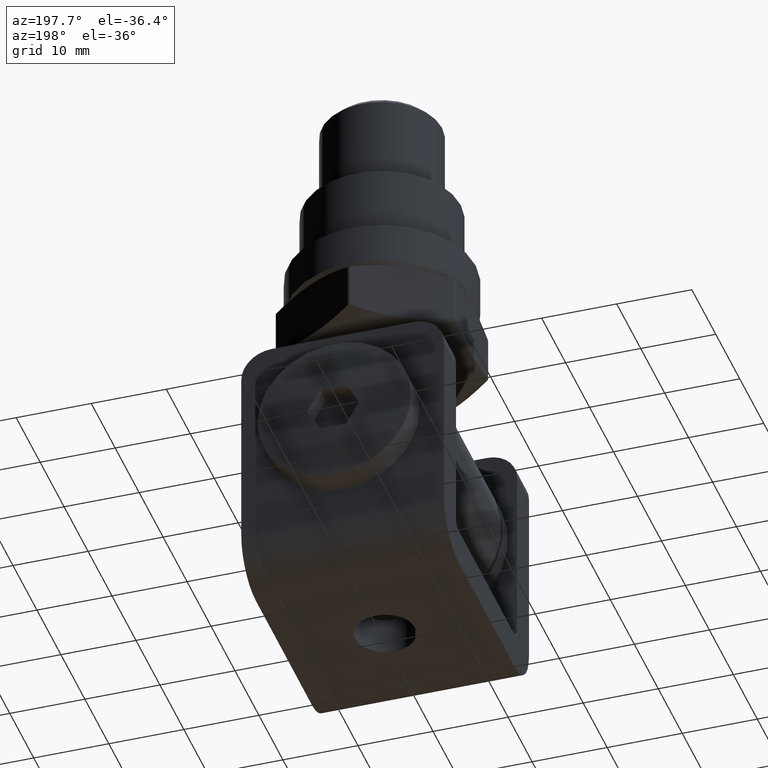
[diagram: clean part render]
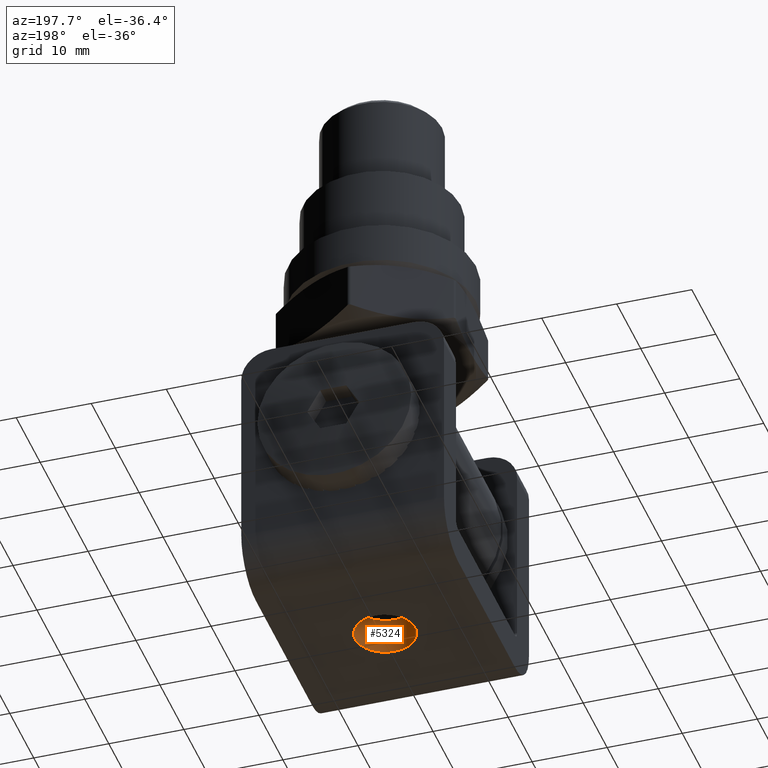
[diagram: same view with one face highlighted and labeled with its STEP entity id]
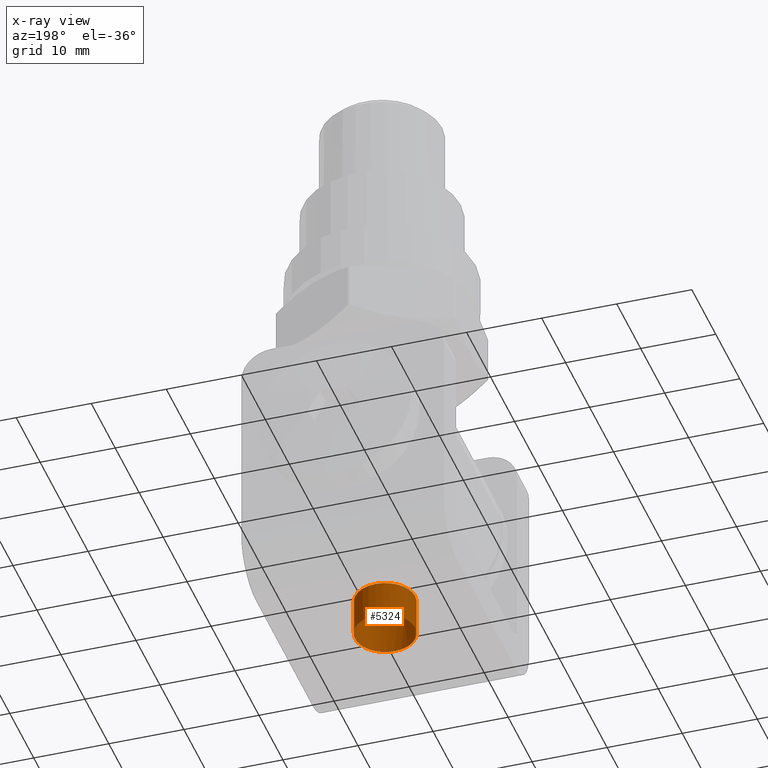
[diagram: x-ray of the same camera — body ghosted, the highlighted face saturated]
A machine part, auxiliary view. The second image highlights one B-rep face of the part: STEP entity #5324.
The next image is the same camera in x-ray: the body ghosted, the highlighted face saturated — about 0% of this face is hidden behind the body in this view.
In plain terms, the highlighted cylindrical surface (bore or boss wall) has radius 4 mm, axis along (0, 0, -1).
Its self-contained STEP definition (entity closure, byte-faithful):
#2736 = AXIS2_PLACEMENT_3D ( 'NONE', #15756, #15618, #18945 ) ;
#3414 = DIRECTION ( 'NONE',  ( 0.000000000000000000, 1.000000000000000000, 0.000000000000000000 ) ) ;
#4573 = CIRCLE ( 'NONE', #4877, 4.000000000000000000 ) ;
#4877 = AXIS2_PLACEMENT_3D ( 'NONE', #19022, #10557, #17416 ) ;
#4891 = CARTESIAN_POINT ( 'NONE',  ( 0.000000000000000000, 5.790555828260613697E-15, -19.75000000000001066 ) ) ;
#5075 = EDGE_LOOP ( 'NONE', ( #18345 ) ) ;
#5324 = ADVANCED_FACE ( 'NONE', ( #14211, #19017 ), #18488, .F. ) ;
#7562 = AXIS2_PLACEMENT_3D ( 'NONE', #4891, #16727, #3414 ) ;
#9022 = EDGE_CURVE ( 'NONE', #10058, #10058, #4573, .T. ) ;
#10058 = VERTEX_POINT ( 'NONE', #12170 ) ;
#10557 = DIRECTION ( 'NONE',  ( 0.000000000000000000, 0.000000000000000000, -1.000000000000000000 ) ) ;
#11070 = CIRCLE ( 'NONE', #7562, 4.000000000000000000 ) ;
#12170 = CARTESIAN_POINT ( 'NONE',  ( -4.000000000000000000, 4.324592327435140157E-15, -14.75000000000000178 ) ) ;
#13885 = CARTESIAN_POINT ( 'NONE',  ( 0.000000000000000000, 4.000000000000006217, -19.75000000000001066 ) ) ;
#14211 = FACE_OUTER_BOUND ( 'NONE', #5075, .T. ) ;
#14237 = EDGE_CURVE ( 'NONE', #14585, #14585, #11070, .T. ) ;
#14248 = EDGE_LOOP ( 'NONE', ( #21055 ) ) ;
#14585 = VERTEX_POINT ( 'NONE', #13885 ) ;
#15618 = DIRECTION ( 'NONE',  ( -0.000000000000000000, 2.931927001650941853E-16, -1.000000000000000000 ) ) ;
#15756 = CARTESIAN_POINT ( 'NONE',  ( 0.000000000000000000, 2.858628826609671351E-15, -9.750000000000010658 ) ) ;
#16727 = DIRECTION ( 'NONE',  ( 0.000000000000000000, 2.931927001650941853E-16, -1.000000000000000000 ) ) ;
#17416 = DIRECTION ( 'NONE',  ( -1.000000000000000000, 0.000000000000000000, 0.000000000000000000 ) ) ;
#18345 = ORIENTED_EDGE ( 'NONE', *, *, #14237, .T. ) ;
#18488 = CYLINDRICAL_SURFACE ( 'NONE', #2736, 4.000000000000000000 ) ;
#18945 = DIRECTION ( 'NONE',  ( 0.000000000000000000, 1.000000000000000000, 4.336808689942017736E-16 ) ) ;
#19017 = FACE_OUTER_BOUND ( 'NONE', #14248, .T. ) ;
#19022 = CARTESIAN_POINT ( 'NONE',  ( 0.000000000000000000, 4.324592327435140157E-15, -14.75000000000000178 ) ) ;
#21055 = ORIENTED_EDGE ( 'NONE', *, *, #9022, .F. ) ;